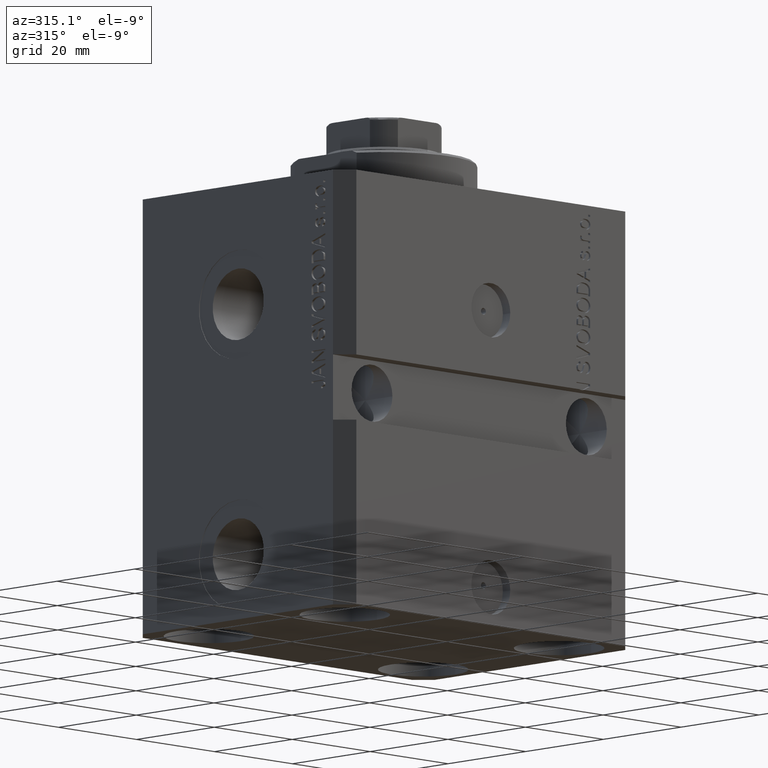
[diagram: clean part render]
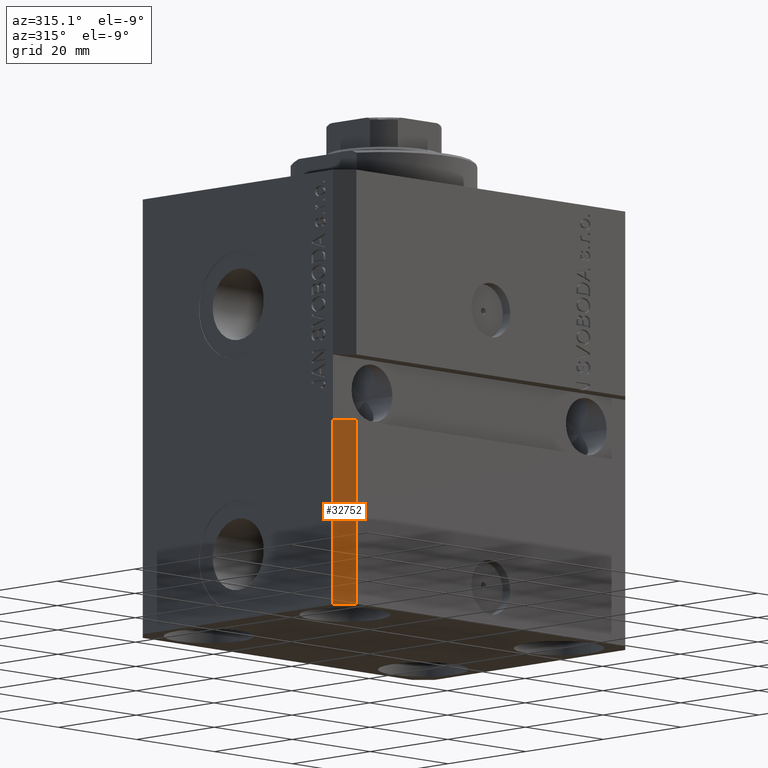
[diagram: same view with one face highlighted and labeled with its STEP entity id]
A machine part, auxiliary view. The second image highlights one B-rep face of the part: STEP entity #32752.
In plain terms, the highlighted planar face has unit normal (-0.7071, -0.7071, 0).
Its self-contained STEP definition (entity closure, byte-faithful):
#196 = VERTEX_POINT ( 'NONE', #11145 ) ;
#1553 = VECTOR ( 'NONE', #17432, 1000.000000000000000 ) ;
#1942 = DIRECTION ( 'NONE',  ( -0.7071067811865466846, -0.7071067811865483499, 0.000000000000000000 ) ) ;
#3111 = CARTESIAN_POINT ( 'NONE',  ( -37.50000000000000000, -24.50000000000000000, -46.00000000000000000 ) ) ;
#4150 = EDGE_CURVE ( 'NONE', #10463, #196, #15875, .T. ) ;
#5317 = CARTESIAN_POINT ( 'NONE',  ( -34.49999999999998579, -27.49999999999999645, -80.00000000000000000 ) ) ;
#5544 = FACE_OUTER_BOUND ( 'NONE', #24044, .T. ) ;
#5630 = CARTESIAN_POINT ( 'NONE',  ( -37.49999999999999289, -24.50000000000000000, -80.00000000000000000 ) ) ;
#9083 = ORIENTED_EDGE ( 'NONE', *, *, #38034, .F. ) ;
#9153 = PLANE ( 'NONE',  #15883 ) ;
#10463 = VERTEX_POINT ( 'NONE', #3111 ) ;
#11007 = LINE ( 'NONE', #14164, #43265 ) ;
#11145 = CARTESIAN_POINT ( 'NONE',  ( -34.49999999999998579, -27.50000000000000000, -46.00000000000000000 ) ) ;
#11357 = ORIENTED_EDGE ( 'NONE', *, *, #4150, .F. ) ;
#14164 = CARTESIAN_POINT ( 'NONE',  ( -37.49999999999999289, -24.50000000000000000, -80.00000000000000000 ) ) ;
#15494 = CARTESIAN_POINT ( 'NONE',  ( -37.49999999999999289, -24.50000000000000000, -80.00000000000000000 ) ) ;
#15875 = LINE ( 'NONE', #33910, #33000 ) ;
#15883 = AXIS2_PLACEMENT_3D ( 'NONE', #15494, #1942, #19518 ) ;
#17432 = DIRECTION ( 'NONE',  ( 0.000000000000000000, 0.000000000000000000, 1.000000000000000000 ) ) ;
#19518 = DIRECTION ( 'NONE',  ( 0.7071067811865483499, -0.7071067811865466846, 0.000000000000000000 ) ) ;
#20804 = LINE ( 'NONE', #38419, #1553 ) ;
#24044 = EDGE_LOOP ( 'NONE', ( #11357, #9083, #35517, #33155 ) ) ;
#25880 = EDGE_CURVE ( 'NONE', #26521, #43000, #26175, .T. ) ;
#26175 = LINE ( 'NONE', #5630, #35677 ) ;
#26521 = VERTEX_POINT ( 'NONE', #38181 ) ;
#27010 = DIRECTION ( 'NONE',  ( 0.7071067811865483499, -0.7071067811865466846, 0.000000000000000000 ) ) ;
#27928 = DIRECTION ( 'NONE',  ( 0.000000000000000000, 0.000000000000000000, 1.000000000000000000 ) ) ;
#32752 = ADVANCED_FACE ( 'NONE', ( #5544 ), #9153, .T. ) ;
#33000 = VECTOR ( 'NONE', #43413, 1000.000000000000000 ) ;
#33155 = ORIENTED_EDGE ( 'NONE', *, *, #39394, .T. ) ;
#33910 = CARTESIAN_POINT ( 'NONE',  ( -37.49999999999999289, -24.50000000000000000, -46.00000000000000000 ) ) ;
#35517 = ORIENTED_EDGE ( 'NONE', *, *, #25880, .T. ) ;
#35677 = VECTOR ( 'NONE', #27010, 1000.000000000000000 ) ;
#38034 = EDGE_CURVE ( 'NONE', #26521, #10463, #11007, .T. ) ;
#38181 = CARTESIAN_POINT ( 'NONE',  ( -37.49999999999999289, -24.50000000000000000, -80.00000000000000000 ) ) ;
#38419 = CARTESIAN_POINT ( 'NONE',  ( -34.49999999999998579, -27.49999999999999645, -80.00000000000000000 ) ) ;
#39394 = EDGE_CURVE ( 'NONE', #43000, #196, #20804, .T. ) ;
#43000 = VERTEX_POINT ( 'NONE', #5317 ) ;
#43265 = VECTOR ( 'NONE', #27928, 1000.000000000000000 ) ;
#43413 = DIRECTION ( 'NONE',  ( 0.7071067811865483499, -0.7071067811865466846, 0.000000000000000000 ) ) ;